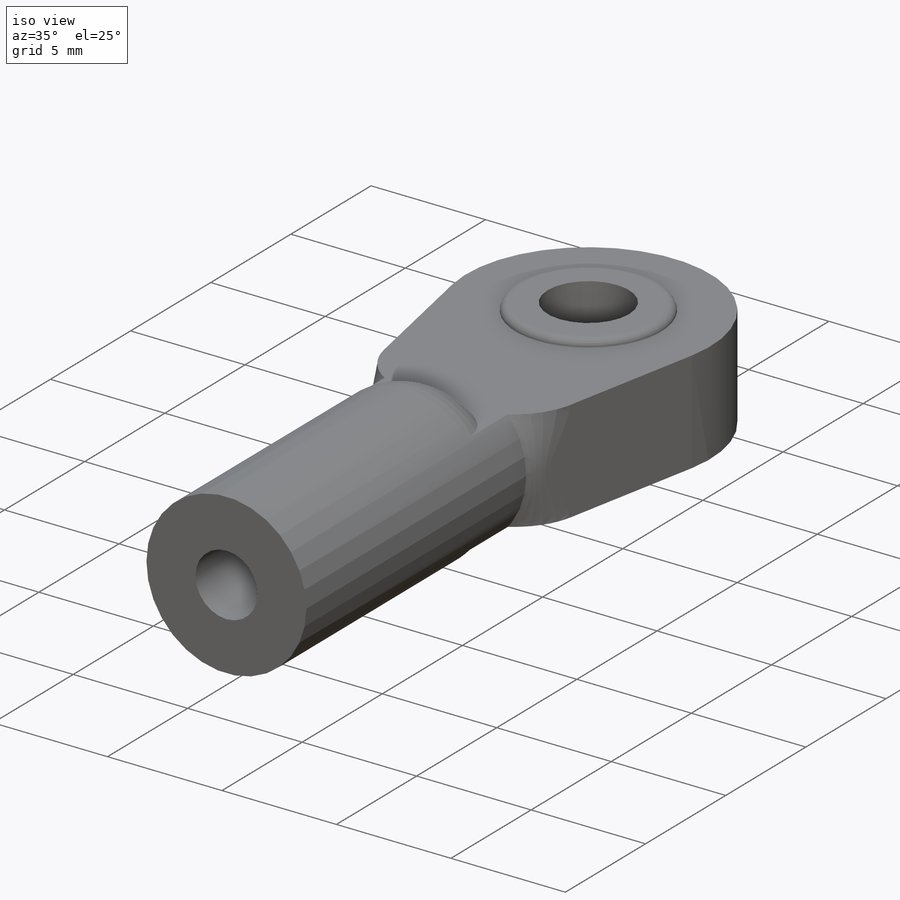
[diagram: iso view]
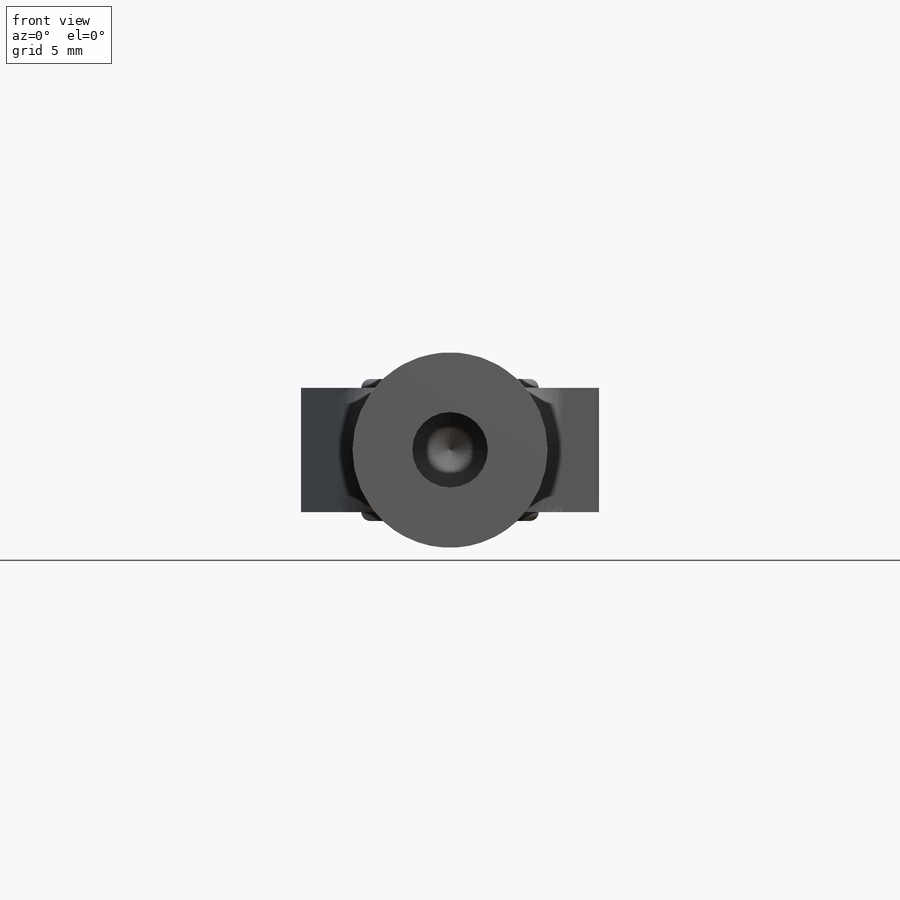
[diagram: front view]
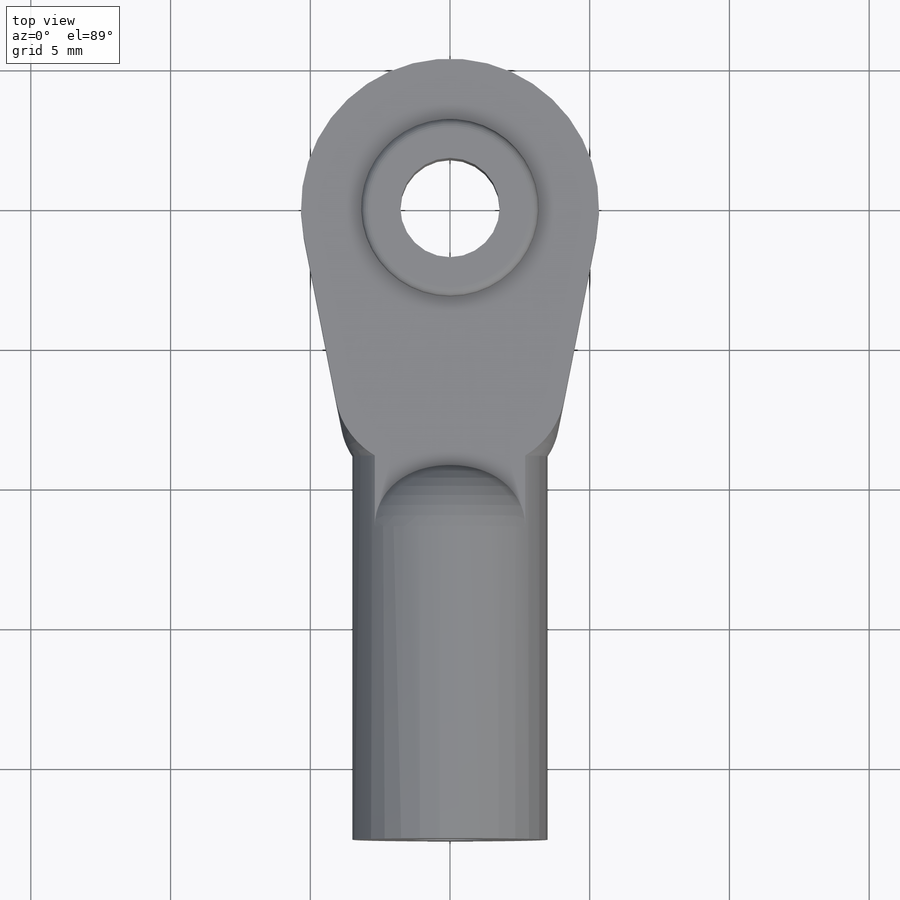
[diagram: top view]
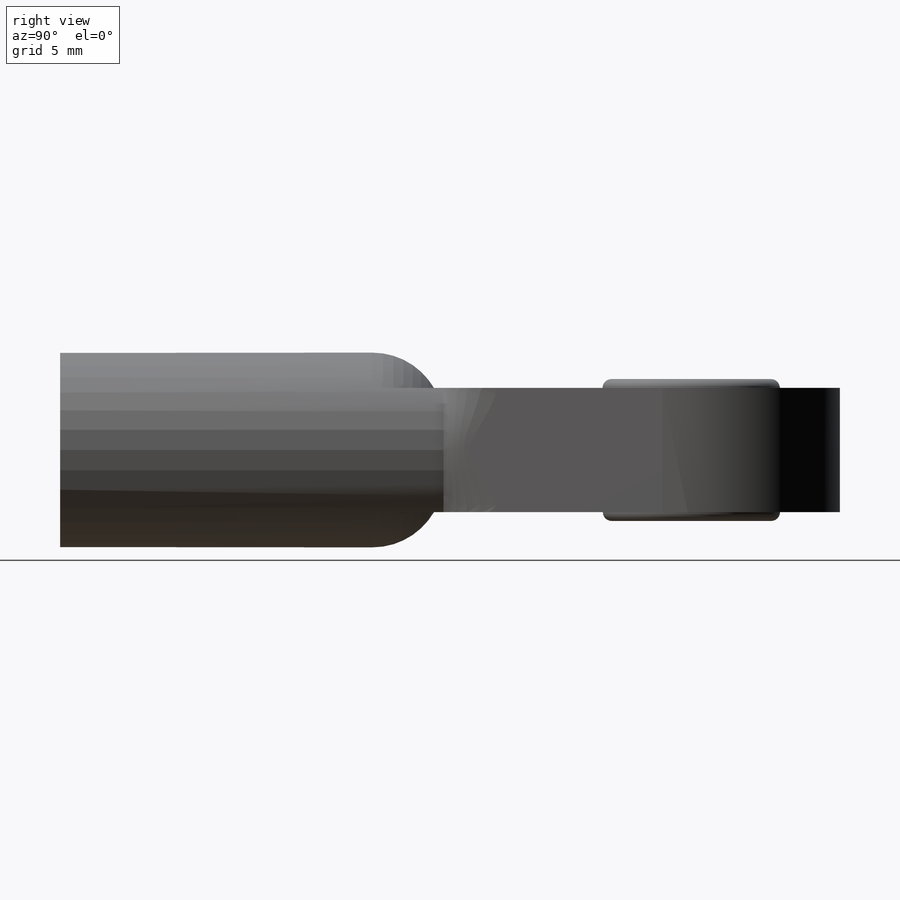
[diagram: right view]
SOLIDWORKS PART (.sldprt)
format: sldprt  version: not decoded by parser v0  size: 267,776 bytes
history: native  units: mm
features: sketch x7, extrude x4, fillet x2, material x1, hole x1, thread x1, cut_extrude x1 (+12 scaffold rows collapsed)
feature tree (29):
  scaffold x12  (default folders/planes/origin — collapsed)
  material  "Material <not specified>"
  sketch  "Sketch1"  dims[D1=10.668mm D2=6.985mm]
  extrude  "Boss-Extrude1"  Depth=4.445mm
  sketch  "Sketch2"  dims[D1=6.985mm]
  extrude  "Boss-Extrude2"  Depth=13.716mm
  fillet  "Fillet1"  Radius=2.54mm
  sketch  "Sketch3"  dims[D1=6.35mm]
  extrude  "Boss-Extrude3"  Depth=0.3175mm
  sketch  "Sketch4"  dims[D1=6.35mm]
  extrude  "Boss-Extrude4"  Depth=0.3175mm
  fillet  "Fillet2"  Radius=0.3175mm
  hole  "#6-32 Tapped Hole1"  Diameter=2.7051mm Depth=12.7mm
  sketch  "Sketch6"
  sketch  "Sketch5"  dims[hole-wizard template sketch: 47 standard entries collapsed; hole parameters kept: c15.Tap Drill Depth=12.7mm c15.D3=~14.816244mm c15.Drill Angle=118.0deg]
  thread  "Hole Thread1"  Diameter=7.112mm  [1 undecoded]
  sketch  "Sketch7"  dims[D1=3.556mm]
  cut_extrude  "Cut-Extrude1"  [1 undecoded]
decode coverage: 14 of 16 modeling features carry decoded parameters
note: ~ marks probable driven/reference dimensions
note: 2 parameter values undecoded
note: suppression state not decoded; provenance and decode notes live in map.json
